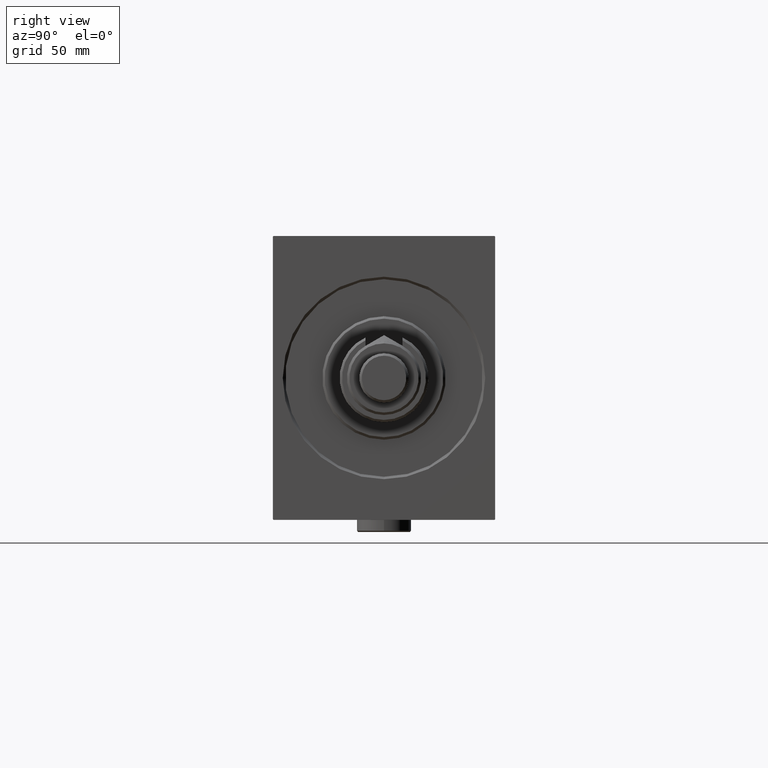
[diagram: clean part render]
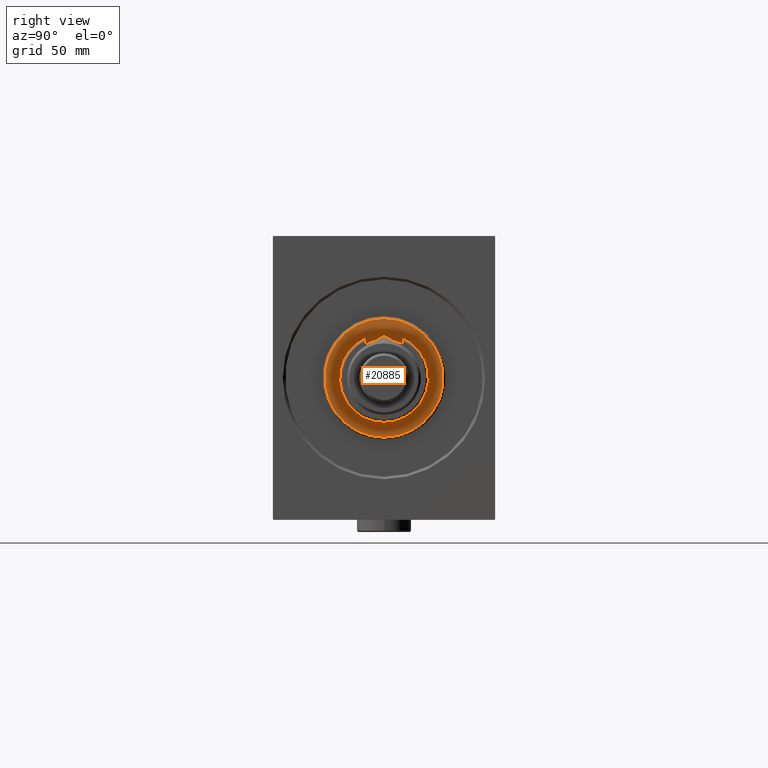
[diagram: same view with one face highlighted and labeled with its STEP entity id]
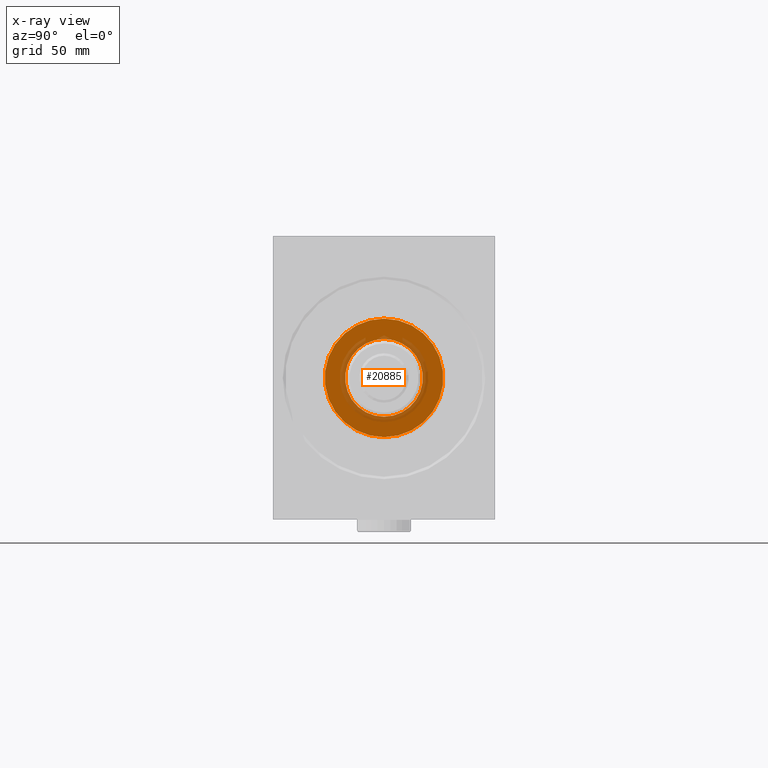
[diagram: x-ray of the same camera — body ghosted, the highlighted face saturated]
A machine part, right view. The second image highlights one B-rep face of the part: STEP entity #20885.
The next image is the same camera in x-ray: the body ghosted, the highlighted face saturated — about 20% of this face is hidden behind the body in this view.
In plain terms, the highlighted planar face has unit normal (1, 0, 0).
Its self-contained STEP definition (entity closure, byte-faithful):
#1487 = CARTESIAN_POINT ( 'NONE',  ( 3.000000000000000000, 1.928818708657080950E-15, -15.75000000000000000 ) ) ;
#2621 = VERTEX_POINT ( 'NONE', #17611 ) ;
#3312 = AXIS2_PLACEMENT_3D ( 'NONE', #4918, #15694, #12557 ) ;
#4918 = CARTESIAN_POINT ( 'NONE',  ( 3.000000000000000000, 0.000000000000000000, 0.000000000000000000 ) ) ;
#5113 = DIRECTION ( 'NONE',  ( 1.000000000000000000, -0.000000000000000000, 0.000000000000000000 ) ) ;
#5237 = EDGE_CURVE ( 'NONE', #6025, #2621, #10878, .T. ) ;
#5344 = CARTESIAN_POINT ( 'NONE',  ( 3.000000000000000000, 0.000000000000000000, 0.000000000000000000 ) ) ;
#6025 = VERTEX_POINT ( 'NONE', #13737 ) ;
#6171 = ORIENTED_EDGE ( 'NONE', *, *, #28542, .T. ) ;
#10878 = CIRCLE ( 'NONE', #37579, 23.99999999999997868 ) ;
#11821 = EDGE_CURVE ( 'NONE', #22391, #31939, #20856, .T. ) ;
#12557 = DIRECTION ( 'NONE',  ( 0.000000000000000000, 0.000000000000000000, -1.000000000000000000 ) ) ;
#12664 = AXIS2_PLACEMENT_3D ( 'NONE', #5344, #5113, #18577 ) ;
#13412 = CIRCLE ( 'NONE', #12664, 23.99999999999997868 ) ;
#13737 = CARTESIAN_POINT ( 'NONE',  ( 3.000000000000000000, 3.000384657911014285E-15, -23.99999999999997868 ) ) ;
#15694 = DIRECTION ( 'NONE',  ( 1.000000000000000000, -0.000000000000000000, 0.000000000000000000 ) ) ;
#17611 = CARTESIAN_POINT ( 'NONE',  ( 3.000000000000000000, 0.000000000000000000, 23.99999999999997868 ) ) ;
#17882 = CARTESIAN_POINT ( 'NONE',  ( 3.000000000000000000, 0.000000000000000000, 0.000000000000000000 ) ) ;
#18178 = ORIENTED_EDGE ( 'NONE', *, *, #11821, .T. ) ;
#18279 = EDGE_LOOP ( 'NONE', ( #42876, #38176 ) ) ;
#18418 = DIRECTION ( 'NONE',  ( 0.000000000000000000, 0.000000000000000000, -1.000000000000000000 ) ) ;
#18577 = DIRECTION ( 'NONE',  ( 0.000000000000000000, 0.000000000000000000, -1.000000000000000000 ) ) ;
#19379 = DIRECTION ( 'NONE',  ( -1.000000000000000000, 0.000000000000000000, -0.000000000000000000 ) ) ;
#20856 = CIRCLE ( 'NONE', #26936, 15.75000000000000000 ) ;
#20885 = ADVANCED_FACE ( 'NONE', ( #30722, #30014 ), #27363, .T. ) ;
#21124 = EDGE_LOOP ( 'NONE', ( #6171, #18178 ) ) ;
#22011 = DIRECTION ( 'NONE',  ( -1.000000000000000000, 0.000000000000000000, -0.000000000000000000 ) ) ;
#22391 = VERTEX_POINT ( 'NONE', #1487 ) ;
#22573 = CARTESIAN_POINT ( 'NONE',  ( 3.000000000000000000, 0.000000000000000000, 15.75000000000000000 ) ) ;
#24148 = CIRCLE ( 'NONE', #46986, 15.75000000000000000 ) ;
#25497 = DIRECTION ( 'NONE',  ( 1.000000000000000000, -0.000000000000000000, 0.000000000000000000 ) ) ;
#25807 = CARTESIAN_POINT ( 'NONE',  ( 3.000000000000000000, 0.000000000000000000, 0.000000000000000000 ) ) ;
#26936 = AXIS2_PLACEMENT_3D ( 'NONE', #25807, #22011, #18418 ) ;
#27363 = PLANE ( 'NONE',  #3312 ) ;
#28542 = EDGE_CURVE ( 'NONE', #31939, #22391, #24148, .T. ) ;
#30014 = FACE_BOUND ( 'NONE', #21124, .T. ) ;
#30722 = FACE_OUTER_BOUND ( 'NONE', #18279, .T. ) ;
#31939 = VERTEX_POINT ( 'NONE', #22573 ) ;
#33134 = DIRECTION ( 'NONE',  ( 0.000000000000000000, 0.000000000000000000, -1.000000000000000000 ) ) ;
#33915 = CARTESIAN_POINT ( 'NONE',  ( 3.000000000000000000, 0.000000000000000000, 0.000000000000000000 ) ) ;
#34626 = DIRECTION ( 'NONE',  ( 0.000000000000000000, 0.000000000000000000, -1.000000000000000000 ) ) ;
#37579 = AXIS2_PLACEMENT_3D ( 'NONE', #17882, #25497, #33134 ) ;
#38176 = ORIENTED_EDGE ( 'NONE', *, *, #5237, .T. ) ;
#42876 = ORIENTED_EDGE ( 'NONE', *, *, #45599, .T. ) ;
#45599 = EDGE_CURVE ( 'NONE', #2621, #6025, #13412, .T. ) ;
#46986 = AXIS2_PLACEMENT_3D ( 'NONE', #33915, #19379, #34626 ) ;